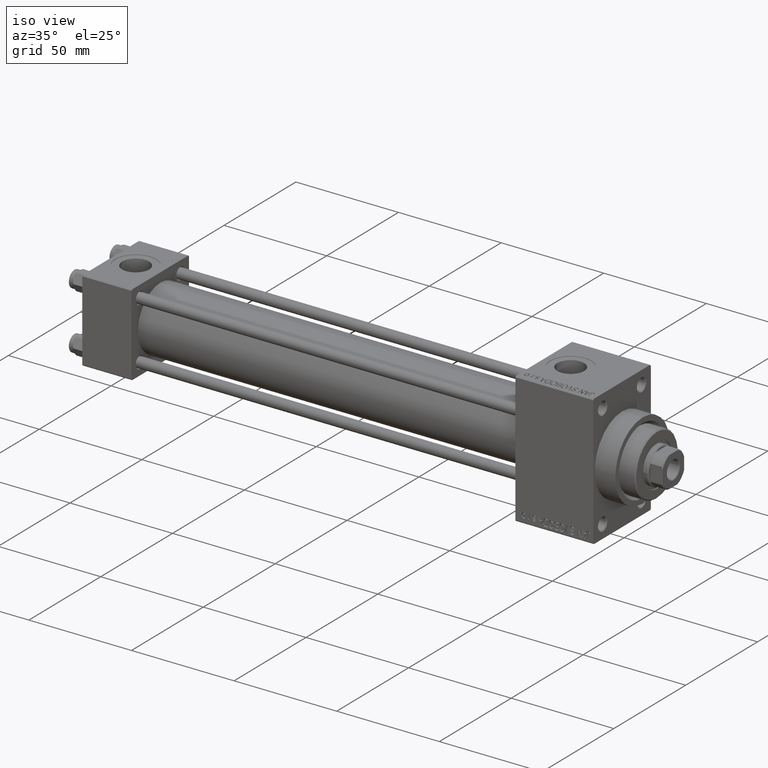
[diagram: clean part render]
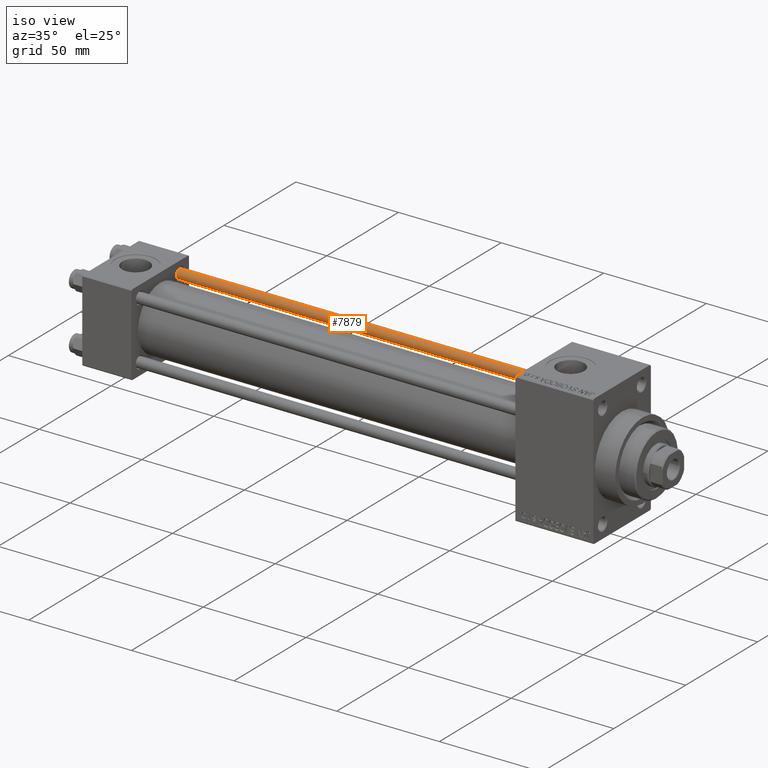
[diagram: same view with one face highlighted and labeled with its STEP entity id]
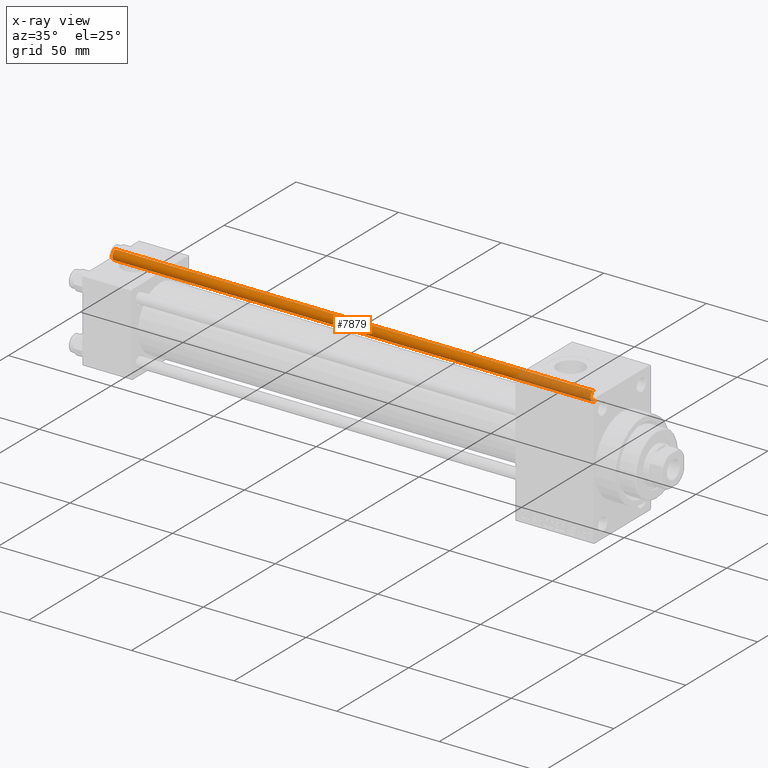
[diagram: x-ray of the same camera — body ghosted, the highlighted face saturated]
A machine part, iso view. The second image highlights one B-rep face of the part: STEP entity #7879.
The next image is the same camera in x-ray: the body ghosted, the highlighted face saturated — about 15% of this face is hidden behind the body in this view.
In plain terms, the highlighted cylindrical surface (edge-blend (fillet) strip) has radius 2.5 mm, axis along (-1, -0, 0).
Its self-contained STEP definition (entity closure, byte-faithful):
#2517 = VECTOR ( 'NONE', #10174, 1000.000000000000000 ) ;
#3055 = DIRECTION ( 'NONE',  ( 0.000000000000000000, 0.000000000000000000, -1.000000000000000000 ) ) ;
#3887 = DIRECTION ( 'NONE',  ( -0.000000000000000000, -0.000000000000000000, -1.000000000000000000 ) ) ;
#5222 = AXIS2_PLACEMENT_3D ( 'NONE', #39278, #3055, #9484 ) ;
#7738 = CARTESIAN_POINT ( 'NONE',  ( 2.500000000000000000, 3.061616997868383141E-16, 233.5000000000000284 ) ) ;
#7879 = ADVANCED_FACE ( 'NONE', ( #10080 ), #42496, .T. ) ;
#9484 = DIRECTION ( 'NONE',  ( 1.000000000000000000, 0.000000000000000000, 0.000000000000000000 ) ) ;
#10013 = AXIS2_PLACEMENT_3D ( 'NONE', #24631, #46765, #27736 ) ;
#10080 = FACE_OUTER_BOUND ( 'NONE', #13071, .T. ) ;
#10174 = DIRECTION ( 'NONE',  ( -0.000000000000000000, -0.000000000000000000, -1.000000000000000000 ) ) ;
#10778 = CARTESIAN_POINT ( 'NONE',  ( 2.500000000000000000, 3.061616997868383141E-16, 234.0000000000000000 ) ) ;
#11110 = EDGE_CURVE ( 'NONE', #17869, #36612, #13502, .T. ) ;
#13071 = EDGE_LOOP ( 'NONE', ( #40545, #16821, #41650, #17786 ) ) ;
#13502 = LINE ( 'NONE', #42831, #2517 ) ;
#13908 = CARTESIAN_POINT ( 'NONE',  ( 2.500000000000000000, 3.061616997868383141E-16, 0.5000000000000281997 ) ) ;
#15213 = DIRECTION ( 'NONE',  ( 1.000000000000000000, 0.000000000000000000, 0.000000000000000000 ) ) ;
#16545 = VERTEX_POINT ( 'NONE', #13908 ) ;
#16821 = ORIENTED_EDGE ( 'NONE', *, *, #19168, .T. ) ;
#17786 = ORIENTED_EDGE ( 'NONE', *, *, #17979, .T. ) ;
#17869 = VERTEX_POINT ( 'NONE', #38032 ) ;
#17979 = EDGE_CURVE ( 'NONE', #36612, #16545, #42480, .T. ) ;
#19168 = EDGE_CURVE ( 'NONE', #19465, #17869, #43257, .T. ) ;
#19465 = VERTEX_POINT ( 'NONE', #7738 ) ;
#19921 = CARTESIAN_POINT ( 'NONE',  ( 0.000000000000000000, 0.000000000000000000, 0.5000000000000281997 ) ) ;
#24631 = CARTESIAN_POINT ( 'NONE',  ( 0.000000000000000000, 0.000000000000000000, 234.0000000000000000 ) ) ;
#27736 = DIRECTION ( 'NONE',  ( -1.000000000000000000, 0.000000000000000000, 0.000000000000000000 ) ) ;
#30655 = DIRECTION ( 'NONE',  ( -0.000000000000000000, -0.000000000000000000, 1.000000000000000000 ) ) ;
#33476 = CARTESIAN_POINT ( 'NONE',  ( -2.500000000000000000, 0.000000000000000000, 0.5000000000000281997 ) ) ;
#33940 = EDGE_CURVE ( 'NONE', #19465, #16545, #35819, .T. ) ;
#35819 = LINE ( 'NONE', #10778, #39826 ) ;
#36612 = VERTEX_POINT ( 'NONE', #33476 ) ;
#38032 = CARTESIAN_POINT ( 'NONE',  ( -2.500000000000000000, 0.000000000000000000, 233.5000000000000284 ) ) ;
#39278 = CARTESIAN_POINT ( 'NONE',  ( 0.000000000000000000, 0.000000000000000000, 233.5000000000000284 ) ) ;
#39826 = VECTOR ( 'NONE', #3887, 1000.000000000000000 ) ;
#40545 = ORIENTED_EDGE ( 'NONE', *, *, #33940, .F. ) ;
#41650 = ORIENTED_EDGE ( 'NONE', *, *, #11110, .T. ) ;
#42480 = CIRCLE ( 'NONE', #44010, 2.500000000000000000 ) ;
#42496 = CYLINDRICAL_SURFACE ( 'NONE', #10013, 2.500000000000000000 ) ;
#42831 = CARTESIAN_POINT ( 'NONE',  ( -2.500000000000000000, 0.000000000000000000, 234.0000000000000000 ) ) ;
#43257 = CIRCLE ( 'NONE', #5222, 2.500000000000000000 ) ;
#44010 = AXIS2_PLACEMENT_3D ( 'NONE', #19921, #30655, #15213 ) ;
#46765 = DIRECTION ( 'NONE',  ( -0.000000000000000000, -0.000000000000000000, -1.000000000000000000 ) ) ;